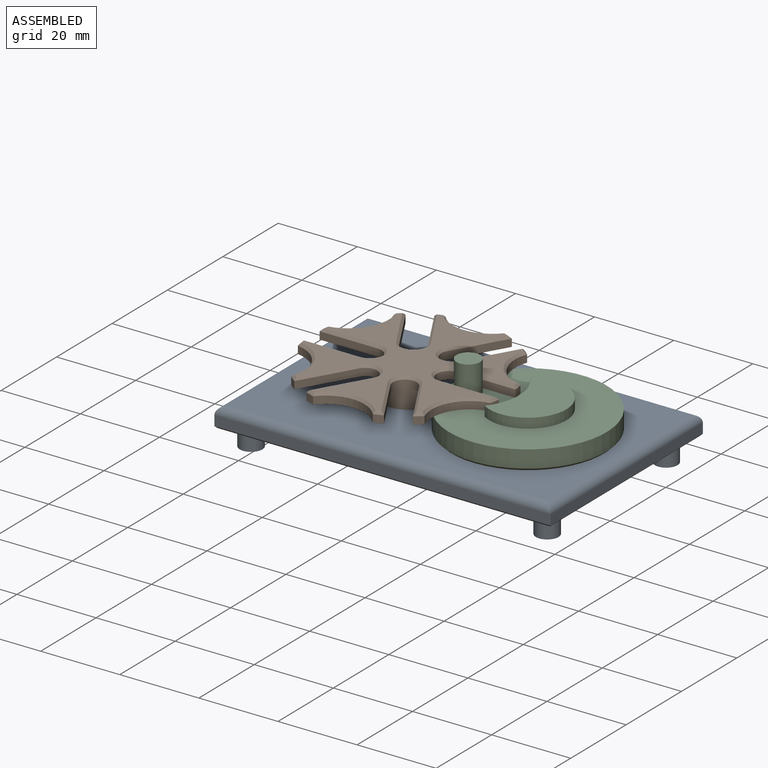
[diagram: assembled view]
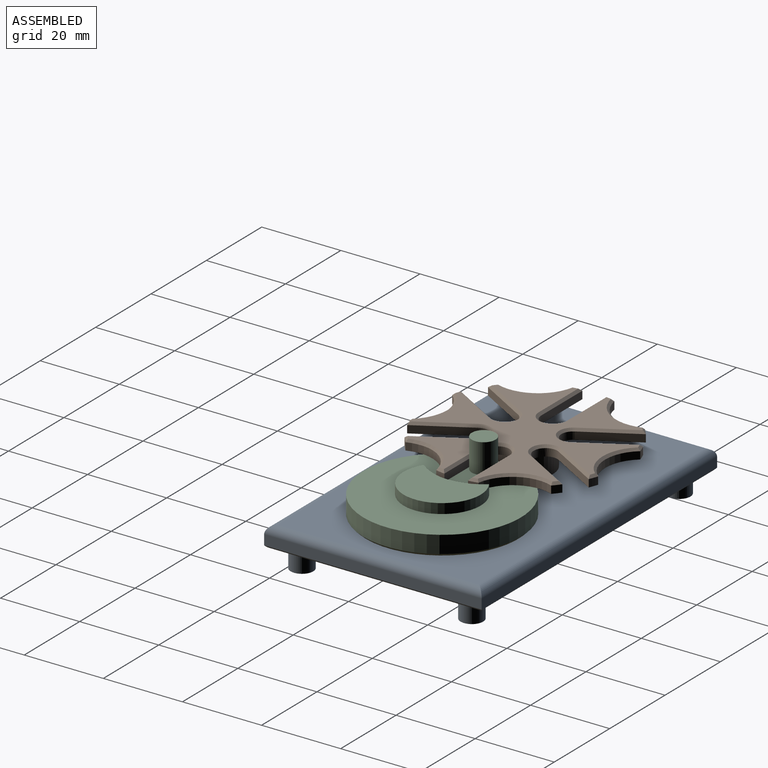
[diagram: assembled view, second angle]
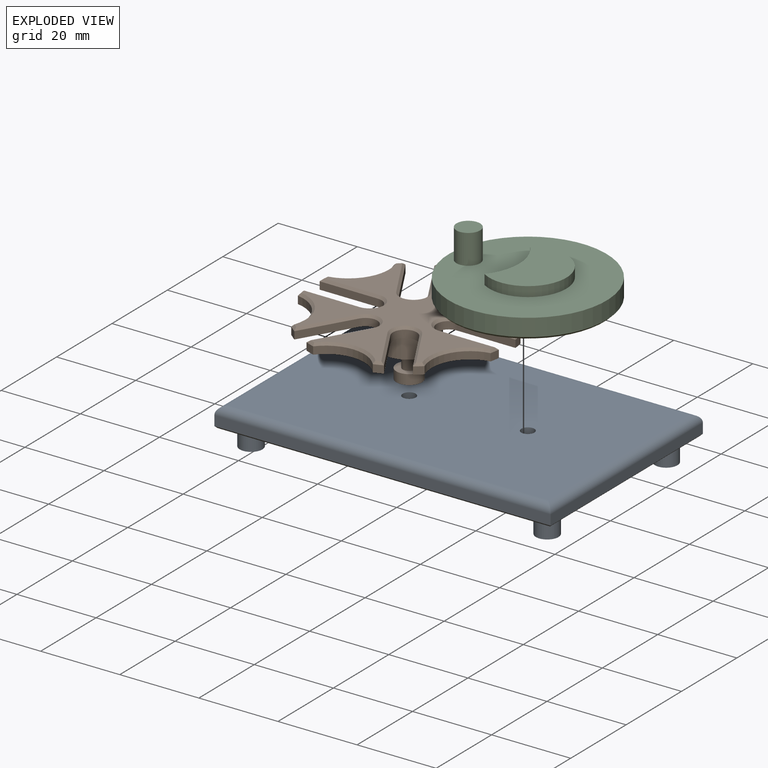
[diagram: exploded view]
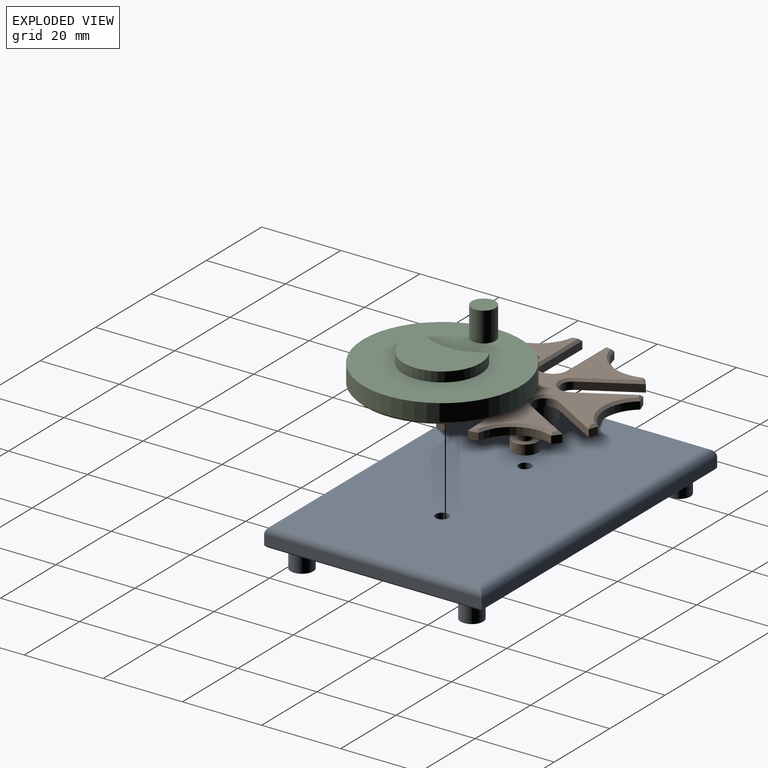
[diagram: exploded view, second angle]
ASSEMBLY  parts=3 mates=3
PART A: 26 faces, bbox 85x55x10 mm
  f0: plane 55x2.5mm, normal (-1,0,0), area 137.5mm2, adj f1,f4,f10,f15
  f1: plane 85x2.5mm, normal (0,-1,0), area 212.5mm2, adj f0,f2,f11,f14
  f2: plane 55x2.5mm, normal (1,0,0), area 137.5mm2, adj f1,f4,f13,f16
  f3: cylinder r=1.65mm len=4.5mm, axis (0,0,-1), area 46.7mm2, adj f6,f9
  f4: plane 85x2.5mm, normal (0,1,0), area 212.5mm2, adj f0,f2,f12,f17
  f5: cylinder r=1.65mm len=4.5mm, axis (0,0,-1), area 46.7mm2, adj f6,f8
  f6: plane 81x51mm, normal (0,0,1), area 4113.9mm2, adj f3,f5,f14,f15,f16,f17
  f7: plane 84x54mm, normal (0,0,-1), area 4404.6mm2, adj f8,f9,f10,f11,f12,f13,f18,f20
  f8: cone r=2.15mm half-angle=45deg, axis (0,0,-1), area 8.4mm2, adj f5,f7
  f9: cone r=2.15mm half-angle=45deg, axis (0,0,-1), area 8.4mm2, adj f3,f7
  f10: plane 55x0.5mm, normal (-0.71,0,-0.71), area 38.5mm2, adj f0,f7,f11,f12
  f11: plane 85x0.5mm, normal (0,-0.71,-0.71), area 59.8mm2, adj f1,f7,f10,f13
  f12: plane 85x0.5mm, normal (0,0.71,-0.71), area 59.8mm2, adj f4,f7,f10,f13
  f13: plane 55x0.5mm, normal (0.71,0,-0.71), area 38.5mm2, adj f2,f7,f11,f12
  f14: cylinder r=2mm len=85mm, axis (-1,0,0), area 262.5mm2, adj f1,f6,f15,f16
  f15: cylinder r=2mm len=55mm, axis (0,1,0), area 168.2mm2, adj f0,f6,f14,f17
  f16: cylinder r=2mm len=55mm, axis (0,-1,0), area 168.2mm2, adj f2,f6,f14,f17
  f17: cylinder r=2mm len=85mm, axis (1,0,0), area 262.5mm2, adj f4,f6,f15,f16
  f18: cylinder r=2.85mm len=5.71mm, axis (0,0,1), area 89.7mm2, adj f7,f19
  f19: plane 5.71x5.71mm, normal (0,0,-1), area 25.6mm2, adj f18
  f20: cylinder r=2.85mm len=5.71mm, axis (0,0,1), area 89.7mm2, adj f7,f21
  f21: plane 5.71x5.71mm, normal (0,0,-1), area 25.6mm2, adj f20
  f22: cylinder r=2.85mm len=5.71mm, axis (0,0,1), area 89.7mm2, adj f7,f23
  f23: plane 5.71x5.71mm, normal (0,0,-1), area 25.6mm2, adj f22
  f24: cylinder r=2.85mm len=5.71mm, axis (0,0,1), area 89.7mm2, adj f7,f25
  f25: plane 5.71x5.71mm, normal (0,0,-1), area 25.6mm2, adj f24
PART B: 85 faces, bbox 49.6x47.7x15 mm
  f0: plane 21.32x19.99mm, normal (0,0,-1), area 148.4mm2, adj f6,f7,f8,f9,f10,f11,f12,f43
  f1: plane 19.62x17.77mm, normal (0,0,-1), area 148.4mm2, adj f5,f6,f36,f37,f38,f39,f40,f43
  f2: plane 21.32x19.99mm, normal (0,0,-1), area 148.4mm2, adj f30,f31,f32,f33,f34,f35,f36,f43
  f3: plane 21.32x19.99mm, normal (0,0,-1), area 148.4mm2, adj f24,f25,f26,f27,f28,f29,f30,f43
  f4: plane 19.62x17.77mm, normal (0,0,-1), area 148.4mm2, adj f18,f19,f20,f21,f22,f23,f24,f43
  f5: plane 12.83x7.41mm, normal (-0.87,-0.5,0), area 28.2mm2, adj f1,f6,f40,f49
  f6: cylinder r=3mm len=5.6mm, axis (0,0,-1), area 17.9mm2, adj f0,f1,f5,f7,f47
  f7: plane 12.83x7.41mm, normal (0.87,0.5,0), area 28.2mm2, adj f0,f6,f8,f45
  f8: cylinder r=25mm len=1.9mm, axis (0,0,-1), area 4.6mm2, adj f0,f7,f9,f46
  f9: cylinder r=9.75mm len=13.08mm, axis (0,0,-1), area 32.8mm2, adj f0,f8,f10,f48
  f10: cylinder r=25mm len=2.38mm, axis (0,0,-1), area 4.6mm2, adj f0,f9,f11,f50
  f11: plane 14.82x1.9mm, normal (0,-1,0), area 28.2mm2, adj f0,f10,f12,f52
  f12: cylinder r=3mm len=6mm, axis (0,0,-1), area 17.9mm2, adj f0,f11,f13,f42,f54
  f13: plane 14.82x1.9mm, normal (0,1,0), area 28.2mm2, adj f12,f14,f42,f56
  f14: cylinder r=25mm len=2.38mm, axis (0,0,-1), area 4.6mm2, adj f13,f15,f42,f58
  f15: cylinder r=9.75mm len=13.08mm, axis (0,0,-1), area 32.8mm2, adj f14,f16,f42,f60
  f16: cylinder r=25mm len=1.9mm, axis (0,0,-1), area 4.6mm2, adj f15,f17,f42,f62
  f17: plane 12.83x7.41mm, normal (0.87,-0.5,0), area 28.2mm2, adj f16,f18,f42,f64
  f18: cylinder r=3mm len=5.6mm, axis (0,0,-1), area 17.9mm2, adj f4,f17,f19,f42,f66
  f19: plane 12.83x7.41mm, normal (-0.87,0.5,0), area 28.2mm2, adj f4,f18,f20,f68
  f20: cylinder r=25mm len=2.26mm, axis (0,0,-1), area 4.6mm2, adj f4,f19,f21,f70
  f21: cylinder r=9.75mm len=15.1mm, axis (0,0,-1), area 32.8mm2, adj f4,f20,f22,f72
  f22: cylinder r=25mm len=2.26mm, axis (0,0,-1), area 4.6mm2, adj f4,f21,f23,f74
  f23: plane 12.83x7.41mm, normal (0.87,0.5,0), area 28.2mm2, adj f4,f22,f24,f76
  f24: cylinder r=3mm len=5.6mm, axis (0,0,-1), area 17.9mm2, adj f3,f4,f23,f25,f78
  f25: plane 12.83x7.41mm, normal (-0.87,-0.5,0), area 28.2mm2, adj f3,f24,f26,f80
  f26: cylinder r=25mm len=1.9mm, axis (0,0,-1), area 4.6mm2, adj f3,f25,f27,f79
  f27: cylinder r=9.75mm len=13.08mm, axis (0,0,-1), area 32.8mm2, adj f3,f26,f28,f77
  f28: cylinder r=25mm len=2.38mm, axis (0,0,-1), area 4.6mm2, adj f3,f27,f29,f75
  f29: plane 14.82x1.9mm, normal (0,1,0), area 28.2mm2, adj f3,f28,f30,f73
  f30: cylinder r=3mm len=6mm, axis (0,0,-1), area 17.9mm2, adj f2,f3,f29,f31,f71
  f31: plane 14.82x1.9mm, normal (0,-1,0), area 28.2mm2, adj f2,f30,f32,f69
  f32: cylinder r=25mm len=2.38mm, axis (0,0,-1), area 4.6mm2, adj f2,f31,f33,f67
  f33: cylinder r=9.75mm len=13.08mm, axis (0,0,-1), area 32.8mm2, adj f2,f32,f34,f65
  f34: cylinder r=25mm len=1.9mm, axis (0,0,-1), area 4.6mm2, adj f2,f33,f35,f63
  f35: plane 12.83x7.41mm, normal (-0.87,0.5,0), area 28.2mm2, adj f2,f34,f36,f61
  f36: cylinder r=3mm len=5.6mm, axis (0,0,-1), area 17.9mm2, adj f1,f2,f35,f37,f59
  f37: plane 12.83x7.41mm, normal (0.87,-0.5,0), area 28.2mm2, adj f1,f36,f38,f57
  f38: cylinder r=25mm len=2.26mm, axis (0,0,-1), area 4.6mm2, adj f1,f37,f39,f55
  f39: cylinder r=9.75mm len=15.1mm, axis (0,0,-1), area 32.8mm2, adj f1,f38,f40,f53
  f40: cylinder r=25mm len=2.26mm, axis (0,0,-1), area 4.6mm2, adj f1,f5,f39,f51
  f41: plane 48.27x46.27mm, normal (0,0,1), area 826.6mm2, adj f45,f46,f47,f48,f49,f50,f51,f52
  f42: plane 21.32x19.99mm, normal (0,0,-1), area 148.4mm2, adj f12,f13,f14,f15,f16,f17,f18,f43
  f43: cylinder r=7mm len=14mm, axis (0,0,1), area 219.9mm2, adj f0,f1,f2,f3,f4,f42,f44
  f44: plane 14x14mm, normal (0,0,-1), area 145.4mm2, adj f43,f81
  f45: plane 13.14x7.59mm, normal (0.61,0.35,0.71), area 12.3mm2, adj f7,f41,f46,f47
  f46: cone r=24.4mm half-angle=45deg, axis (0,0,-1), area 1.6mm2, adj f8,f41,f45,f48
  f47: cone r=3mm half-angle=45deg, axis (0,0,1), area 8.8mm2, adj f6,f41,f45,f49
  f48: cone r=9.75mm half-angle=45deg, axis (0,0,1), area 14.8mm2, adj f9,f41,f46,f50
  f49: plane 12.84x7.94mm, normal (-0.61,-0.35,0.71), area 12.3mm2, adj f5,f41,f47,f51
  f50: cone r=24.4mm half-angle=45deg, axis (0,0,-1), area 1.6mm2, adj f10,f41,f48,f52
  f51: cone r=24.4mm half-angle=45deg, axis (0,0,-1), area 1.6mm2, adj f40,f41,f49,f53
  f52: plane 14.83x0.61mm, normal (0,-0.71,0.71), area 12.3mm2, adj f11,f41,f50,f54
  f53: cone r=9.75mm half-angle=45deg, axis (0,0,1), area 14.8mm2, adj f39,f41,f51,f55
  f54: cone r=3mm half-angle=45deg, axis (0,0,1), area 8.8mm2, adj f12,f41,f52,f56
  f55: cone r=24.4mm half-angle=45deg, axis (0,0,-1), area 1.6mm2, adj f38,f41,f53,f57
  f56: plane 14.83x0.61mm, normal (0,0.71,0.71), area 12.3mm2, adj f13,f41,f54,f58
  f57: plane 12.84x7.94mm, normal (0.61,-0.35,0.71), area 12.3mm2, adj f37,f41,f55,f59
  f58: cone r=24.4mm half-angle=45deg, axis (0,0,-1), area 1.6mm2, adj f14,f41,f56,f60
  f59: cone r=3mm half-angle=45deg, axis (0,0,1), area 8.8mm2, adj f36,f41,f57,f61
  f60: cone r=9.75mm half-angle=45deg, axis (0,0,1), area 14.8mm2, adj f15,f41,f58,f62
  f61: plane 13.14x7.59mm, normal (-0.61,0.35,0.71), area 12.3mm2, adj f35,f41,f59,f63
  f62: cone r=24.4mm half-angle=45deg, axis (0,0,-1), area 1.6mm2, adj f16,f41,f60,f64
  f63: cone r=24.4mm half-angle=45deg, axis (0,0,-1), area 1.6mm2, adj f34,f41,f61,f65
  f64: plane 13.14x7.59mm, normal (0.61,-0.35,0.71), area 12.3mm2, adj f17,f41,f62,f66
  f65: cone r=9.75mm half-angle=45deg, axis (0,0,1), area 14.8mm2, adj f33,f41,f63,f67
  f66: cone r=3mm half-angle=45deg, axis (0,0,1), area 8.8mm2, adj f18,f41,f64,f68
  f67: cone r=24.4mm half-angle=45deg, axis (0,0,-1), area 1.6mm2, adj f32,f41,f65,f69
  f68: plane 12.84x7.94mm, normal (-0.61,0.35,0.71), area 12.3mm2, adj f19,f41,f66,f70
  f69: plane 14.83x0.61mm, normal (0,-0.71,0.71), area 12.3mm2, adj f31,f41,f67,f71
  f70: cone r=24.4mm half-angle=45deg, axis (0,0,-1), area 1.6mm2, adj f20,f41,f68,f72
  f71: cone r=3mm half-angle=45deg, axis (0,0,1), area 8.8mm2, adj f30,f41,f69,f73
  f72: cone r=9.75mm half-angle=45deg, axis (0,0,1), area 14.8mm2, adj f21,f41,f70,f74
  f73: plane 14.83x0.61mm, normal (0,0.71,0.71), area 12.3mm2, adj f29,f41,f71,f75
  f74: cone r=24.4mm half-angle=45deg, axis (0,0,-1), area 1.6mm2, adj f22,f41,f72,f76
  f75: cone r=24.4mm half-angle=45deg, axis (0,0,-1), area 1.6mm2, adj f28,f41,f73,f77
  f76: plane 12.84x7.94mm, normal (0.61,0.35,0.71), area 12.3mm2, adj f23,f41,f74,f78
  f77: cone r=9.75mm half-angle=45deg, axis (0,0,1), area 14.8mm2, adj f27,f41,f75,f79
  f78: cone r=3mm half-angle=45deg, axis (0,0,1), area 8.8mm2, adj f24,f41,f76,f80
  f79: cone r=24.4mm half-angle=45deg, axis (0,0,-1), area 1.6mm2, adj f26,f41,f77,f80
  f80: plane 13.14x7.59mm, normal (-0.61,-0.35,0.71), area 12.3mm2, adj f25,f41,f78,f79
  f81: cylinder r=1.65mm len=5mm, axis (0,0,1), area 51.8mm2, adj f44,f84
  f82: cylinder r=3.25mm len=6.5mm, axis (0,0,1), area 51.1mm2, adj f83,f84
  f83: plane 6.5x6.5mm, normal (0,0,-1), area 33.2mm2, adj f82
  f84: plane 6.5x6.5mm, normal (0,0,1), area 24.6mm2, adj f81,f82
PART C: 147 faces, bbox 39.8x39.8x20 mm
  f0: cylinder r=3.25mm len=2.5mm, axis (0,0,1), area 0.6mm2, adj f44,f45,f144,f145
  f1: cylinder r=3.25mm len=2.5mm, axis (0,0,1), area 0.6mm2, adj f44,f45,f142,f143
  f2: cylinder r=3.25mm len=2.5mm, axis (0,0,1), area 0.6mm2, adj f44,f45,f140,f141
  f3: cylinder r=3.25mm len=2.5mm, axis (0,0,1), area 0.6mm2, adj f44,f45,f134,f139
  f4: cylinder r=3.25mm len=2.5mm, axis (0,0,1), area 0.6mm2, adj f44,f45,f136,f137
  f5: cylinder r=3.25mm len=2.5mm, axis (0,0,1), area 0.6mm2, adj f44,f45,f88,f135
  f6: cylinder r=3.25mm len=2.5mm, axis (0,0,1), area 0.6mm2, adj f44,f45,f132,f133
  f7: cylinder r=3.25mm len=2.5mm, axis (0,0,1), area 0.6mm2, adj f44,f45,f131,f138
  f8: cylinder r=3.25mm len=2.5mm, axis (0,0,1), area 0.6mm2, adj f44,f45,f128,f129
  f9: cylinder r=3.25mm len=2.5mm, axis (0,0,1), area 0.6mm2, adj f44,f45,f118,f127
  f10: cylinder r=3.25mm len=2.5mm, axis (0,0,1), area 0.6mm2, adj f44,f45,f124,f125
  f11: cylinder r=3.25mm len=2.5mm, axis (0,0,1), area 0.6mm2, adj f44,f45,f123,f130
  f12: cylinder r=3.25mm len=2.5mm, axis (0,0,1), area 0.6mm2, adj f44,f45,f120,f121
  f13: cylinder r=3.25mm len=2.5mm, axis (0,0,1), area 0.6mm2, adj f44,f45,f119,f146
  f14: cylinder r=3.25mm len=2.5mm, axis (0,0,1), area 0.6mm2, adj f44,f45,f116,f117
  f15: cylinder r=3.25mm len=2.5mm, axis (0,0,1), area 0.6mm2, adj f44,f45,f115,f122
  f16: cylinder r=3.25mm len=2.5mm, axis (0,0,1), area 0.6mm2, adj f44,f45,f112,f113
  f17: cylinder r=3.25mm len=2.5mm, axis (0,0,1), area 0.6mm2, adj f44,f45,f102,f111
  f18: cylinder r=3.25mm len=2.5mm, axis (0,0,1), area 0.6mm2, adj f44,f45,f108,f109
  f19: cylinder r=3.25mm len=2.5mm, axis (0,0,1), area 0.6mm2, adj f44,f45,f107,f114
  f20: cylinder r=3.25mm len=2.5mm, axis (0,0,1), area 0.6mm2, adj f44,f45,f104,f105
  f21: cylinder r=3.25mm len=2.5mm, axis (0,0,1), area 0.6mm2, adj f44,f45,f57,f103
  f22: cylinder r=3.25mm len=2.5mm, axis (0,0,1), area 0.6mm2, adj f44,f45,f100,f101
  f23: cylinder r=3.25mm len=2.5mm, axis (0,0,1), area 0.6mm2, adj f44,f45,f99,f106
  f24: cylinder r=3.25mm len=2.5mm, axis (0,0,1), area 0.6mm2, adj f44,f45,f96,f97
  f25: cylinder r=3.25mm len=2.5mm, axis (0,0,1), area 0.6mm2, adj f44,f45,f95,f110
  f26: cylinder r=3.25mm len=2.5mm, axis (0,0,1), area 0.6mm2, adj f44,f45,f93,f98
  f27: cylinder r=3.25mm len=2.5mm, axis (0,0,1), area 0.6mm2, adj f44,f45,f91,f94
  f28: cylinder r=3.25mm len=2.5mm, axis (0,0,1), area 0.6mm2, adj f44,f45,f84,f89
  f29: cylinder r=3.25mm len=2.5mm, axis (0,0,1), area 0.6mm2, adj f44,f45,f87,f90
  f30: cylinder r=3.25mm len=2.5mm, axis (0,0,1), area 0.6mm2, adj f44,f45,f85,f92
  f31: cylinder r=3.25mm len=2.5mm, axis (0,0,1), area 0.6mm2, adj f44,f45,f83,f86
  f32: cylinder r=3.25mm len=2.5mm, axis (0,0,1), area 0.6mm2, adj f44,f45,f80,f81
  f33: cylinder r=3.25mm len=2.5mm, axis (0,0,1), area 0.6mm2, adj f44,f45,f64,f79
  f34: cylinder r=3.25mm len=2.5mm, axis (0,0,1), area 0.6mm2, adj f44,f45,f76,f77
  f35: cylinder r=3.25mm len=2.5mm, axis (0,0,1), area 0.6mm2, adj f44,f45,f75,f82
  f36: cylinder r=3.25mm len=2.5mm, axis (0,0,1), area 0.6mm2, adj f44,f45,f73,f126
  f37: cylinder r=3.25mm len=2.5mm, axis (0,0,1), area 0.6mm2, adj f44,f45,f71,f74
  f38: cylinder r=3.25mm len=2.5mm, axis (0,0,1), area 0.6mm2, adj f44,f45,f68,f69
  f39: cylinder r=3.25mm len=2.5mm, axis (0,0,1), area 0.6mm2, adj f44,f45,f67,f72
  f40: cylinder r=3.25mm len=2.5mm, axis (0,0,1), area 0.6mm2, adj f44,f45,f60,f65
  f41: cylinder r=3.25mm len=2.5mm, axis (0,0,1), area 0.6mm2, adj f44,f45,f63,f66
  f42: cylinder r=3.25mm len=2.5mm, axis (0,0,1), area 0.6mm2, adj f44,f45,f61,f70
  f43: cylinder r=3.25mm len=2.5mm, axis (0,0,1), area 0.6mm2, adj f44,f45,f59,f62
  f44: plane 6.5x6.5mm, normal (0,0,-1), area 31.2mm2, adj f0,f1,f2,f3,f4,f5,f6,f7
  f45: plane 6.5x6.5mm, normal (0,0,1), area 22.6mm2, adj f0,f1,f2,f3,f4,f5,f6,f7
  f46: plane 39.84x39.84mm, normal (0,0,1), area 1007mm2, adj f47,f49,f50,f52
  f47: cylinder r=19.92mm len=39.84mm, axis (0,0,-1), area 550.7mm2, adj f46,f54
  f48: plane 38.64x38.64mm, normal (0,0,-1), area 1164.1mm2, adj f54,f55
  f49: cylinder r=12.86mm len=13.74mm, axis (0,0,-1), area 44.9mm2, adj f46,f50,f51
  f50: cylinder r=9.75mm len=19.5mm, axis (0,0,-1), area 103.9mm2, adj f46,f49,f51
  f51: plane 19.5x18.64mm, normal (0,0,1), area 211.4mm2, adj f49,f50
  f52: cylinder r=3mm len=7.5mm, axis (0,0,-1), area 141.4mm2, adj f46,f53
  f53: plane 6x6mm, normal (0,0,1), area 28.3mm2, adj f52
  f54: cone r=19.92mm half-angle=45deg, axis (0,0,1), area 104.6mm2, adj f47,f48
  f55: cylinder r=1.65mm len=5mm, axis (0,0,1), area 51.8mm2, adj f45,f48
  f56: cylinder r=3.25mm len=2.5mm, axis (0,0,1), area 0.6mm2, adj f44,f45,f58,f78
  f57: plane 2.5x0.45mm, normal (0.98,-0.22,0), area 1.2mm2, adj f21,f44,f45,f58
  f58: plane 2.5x0.45mm, normal (-0.98,-0.22,0), area 1.2mm2, adj f44,f45,f56,f57
  f59: plane 2.5x0.43mm, normal (-0.37,-0.93,0), area 1.2mm2, adj f43,f44,f45,f60
  f60: plane 2.5x0.33mm, normal (0.73,0.69,0), area 1.2mm2, adj f40,f44,f45,f59
  f61: plane 2.5x0.45mm, normal (-0.23,-0.97,0), area 1.2mm2, adj f42,f44,f45,f62
  f62: plane 2.5x0.36mm, normal (0.62,0.78,0), area 1.2mm2, adj f43,f44,f45,f61
  f63: plane 2.5x0.37mm, normal (-0.61,-0.79,0), area 1.2mm2, adj f41,f44,f45,f64
  f64: plane 2.5x0.41mm, normal (0.89,0.46,0), area 1.2mm2, adj f33,f44,f45,f63
  f65: plane 2.5x0.4mm, normal (-0.49,-0.87,0), area 1.2mm2, adj f40,f44,f45,f66
  f66: plane 2.5x0.38mm, normal (0.81,0.58,0), area 1.2mm2, adj f41,f44,f45,f65
  f67: plane 2.5x0.46mm, normal (0.04,-1,0), area 1.2mm2, adj f39,f44,f45,f68
  f68: plane 2.5x0.43mm, normal (0.38,0.92,0), area 1.2mm2, adj f38,f44,f45,f67
  f69: plane 2.5x0.46mm, normal (-0.1,-1,0), area 1.2mm2, adj f38,f44,f45,f70
  f70: plane 2.5x0.4mm, normal (0.51,0.86,0), area 1.2mm2, adj f42,f44,f45,f69
  f71: plane 2.5x0.45mm, normal (0.18,-0.98,0), area 1.2mm2, adj f37,f44,f45,f72
  f72: plane 2.5x0.45mm, normal (0.25,0.97,0), area 1.2mm2, adj f39,f44,f45,f71
  f73: plane 2.5x0.44mm, normal (0.32,-0.95,0), area 1.2mm2, adj f36,f44,f45,f74
  f74: plane 2.5x0.46mm, normal (0.11,0.99,0), area 1.2mm2, adj f37,f44,f45,f73
  f75: plane 2.5x0.41mm, normal (-0.88,-0.48,0), area 1.2mm2, adj f35,f44,f45,f76
  f76: plane 2.5x0.46mm, normal (1,0.06,0), area 1.2mm2, adj f34,f44,f45,f75
  f77: plane 2.5x0.43mm, normal (-0.94,-0.35,0), area 1.2mm2, adj f34,f44,f45,f78
  f78: plane 2.5x0.46mm, normal (1,-0.08,0), area 1.2mm2, adj f44,f45,f56,f77
  f79: plane 2.5x0.33mm, normal (-0.71,-0.7,0), area 1.2mm2, adj f33,f44,f45,f80
  f80: plane 2.5x0.43mm, normal (0.94,0.33,0), area 1.2mm2, adj f32,f44,f45,f79
  f81: plane 2.5x0.37mm, normal (-0.8,-0.59,0), area 1.2mm2, adj f32,f44,f45,f82
  f82: plane 2.5x0.45mm, normal (0.98,0.2,0), area 1.2mm2, adj f35,f44,f45,f81
  f83: plane 2.5x0.45mm, normal (0.17,0.99,0), area 1.2mm2, adj f31,f44,f45,f84
  f84: plane 2.5x0.38mm, normal (-0.57,-0.82,0), area 1.2mm2, adj f28,f44,f45,f83
  f85: plane 2.5x0.46mm, normal (0.03,1,0), area 1.2mm2, adj f30,f44,f45,f86
  f86: plane 2.5x0.41mm, normal (-0.45,-0.89,0), area 1.2mm2, adj f31,f44,f45,f85
  f87: plane 2.5x0.42mm, normal (0.43,0.9,0), area 1.2mm2, adj f29,f44,f45,f88
  f88: plane 2.5x0.36mm, normal (-0.77,-0.64,0), area 1.2mm2, adj f5,f44,f45,f87
  f89: plane 2.5x0.44mm, normal (0.3,0.95,0), area 1.2mm2, adj f28,f44,f45,f90
  f90: plane 2.5x0.34mm, normal (-0.68,-0.74,0), area 1.2mm2, adj f29,f44,f45,f89
  f91: plane 2.5x0.46mm, normal (-0.11,0.99,0), area 1.2mm2, adj f27,f44,f45,f92
  f92: plane 2.5x0.44mm, normal (-0.32,-0.95,0), area 1.2mm2, adj f30,f44,f45,f91
  f93: plane 2.5x0.45mm, normal (-0.25,0.97,0), area 1.2mm2, adj f26,f44,f45,f94
  f94: plane 2.5x0.45mm, normal (-0.18,-0.98,0), area 1.2mm2, adj f27,f44,f45,f93
  f95: plane 2.5x0.4mm, normal (-0.51,0.86,0), area 1.2mm2, adj f25,f44,f45,f96
  f96: plane 2.5x0.46mm, normal (0.1,-1,0), area 1.2mm2, adj f24,f44,f45,f95
  f97: plane 2.5x0.43mm, normal (-0.38,0.92,0), area 1.2mm2, adj f24,f44,f45,f98
  f98: plane 2.5x0.46mm, normal (-0.04,-1,0), area 1.2mm2, adj f26,f44,f45,f97
  f99: plane 2.5x0.45mm, normal (-0.98,0.2,0), area 1.2mm2, adj f23,f44,f45,f100
  f100: plane 2.5x0.37mm, normal (0.8,-0.59,0), area 1.2mm2, adj f22,f44,f45,f99
  f101: plane 2.5x0.43mm, normal (-0.94,0.33,0), area 1.2mm2, adj f22,f44,f45,f102
  f102: plane 2.5x0.33mm, normal (0.71,-0.7,0), area 1.2mm2, adj f17,f44,f45,f101
  f103: plane 2.5x0.46mm, normal (-1,-0.08,0), area 1.2mm2, adj f21,f44,f45,f104
  f104: plane 2.5x0.43mm, normal (0.94,-0.35,0), area 1.2mm2, adj f20,f44,f45,f103
  f105: plane 2.5x0.46mm, normal (-1,0.06,0), area 1.2mm2, adj f20,f44,f45,f106
  f106: plane 2.5x0.41mm, normal (0.88,-0.48,0), area 1.2mm2, adj f23,f44,f45,f105
  f107: plane 2.5x0.33mm, normal (-0.73,0.69,0), area 1.2mm2, adj f19,f44,f45,f108
  f108: plane 2.5x0.43mm, normal (0.37,-0.93,0), area 1.2mm2, adj f18,f44,f45,f107
  f109: plane 2.5x0.36mm, normal (-0.62,0.78,0), area 1.2mm2, adj f18,f44,f45,f110
  f110: plane 2.5x0.45mm, normal (0.23,-0.97,0), area 1.2mm2, adj f25,f44,f45,f109
  f111: plane 2.5x0.41mm, normal (-0.89,0.46,0), area 1.2mm2, adj f17,f44,f45,f112
  f112: plane 2.5x0.37mm, normal (0.61,-0.79,0), area 1.2mm2, adj f16,f44,f45,f111
  f113: plane 2.5x0.38mm, normal (-0.81,0.58,0), area 1.2mm2, adj f16,f44,f45,f114
  f114: plane 2.5x0.4mm, normal (0.49,-0.87,0), area 1.2mm2, adj f19,f44,f45,f113
  f115: plane 2.5x0.42mm, normal (0.92,-0.4,0), area 1.2mm2, adj f15,f44,f45,f116
  f116: plane 2.5x0.35mm, normal (-0.66,0.75,0), area 1.2mm2, adj f14,f44,f45,f115
  f117: plane 2.5x0.39mm, normal (0.85,-0.52,0), area 1.2mm2, adj f14,f44,f45,f118
  f118: plane 2.5x0.38mm, normal (-0.55,0.83,0), area 1.2mm2, adj f9,f44,f45,f117
  f119: plane 2.5x0.46mm, normal (0.99,-0.13,0), area 1.2mm2, adj f13,f44,f45,f120
  f120: plane 2.5x0.39mm, normal (-0.84,0.54,0), area 1.2mm2, adj f12,f44,f45,f119
  f121: plane 2.5x0.44mm, normal (0.96,-0.27,0), area 1.2mm2, adj f12,f44,f45,f122
  f122: plane 2.5x0.35mm, normal (-0.76,0.65,0), area 1.2mm2, adj f15,f44,f45,f121
  f123: plane 2.5x0.38mm, normal (0.57,-0.82,0), area 1.2mm2, adj f11,f44,f45,f124
  f124: plane 2.5x0.45mm, normal (-0.17,0.99,0), area 1.2mm2, adj f10,f44,f45,f123
  f125: plane 2.5x0.41mm, normal (0.45,-0.89,0), area 1.2mm2, adj f10,f44,f45,f126
  f126: plane 2.5x0.46mm, normal (-0.03,1,0), area 1.2mm2, adj f36,f44,f45,f125
  f127: plane 2.5x0.36mm, normal (0.77,-0.64,0), area 1.2mm2, adj f9,f44,f45,f128
  f128: plane 2.5x0.42mm, normal (-0.43,0.9,0), area 1.2mm2, adj f8,f44,f45,f127
  f129: plane 2.5x0.34mm, normal (0.68,-0.74,0), area 1.2mm2, adj f8,f44,f45,f130
  f130: plane 2.5x0.44mm, normal (-0.3,0.95,0), area 1.2mm2, adj f11,f44,f45,f129
  f131: plane 2.5x0.35mm, normal (0.76,0.65,0), area 1.2mm2, adj f7,f44,f45,f132
  f132: plane 2.5x0.44mm, normal (-0.96,-0.27,0), area 1.2mm2, adj f6,f44,f45,f131
  f133: plane 2.5x0.39mm, normal (0.84,0.54,0), area 1.2mm2, adj f6,f44,f45,f134
  f134: plane 2.5x0.46mm, normal (-0.99,-0.13,0), area 1.2mm2, adj f3,f44,f45,f133
  f135: plane 2.5x0.38mm, normal (0.55,0.83,0), area 1.2mm2, adj f5,f44,f45,f136
  f136: plane 2.5x0.39mm, normal (-0.85,-0.52,0), area 1.2mm2, adj f4,f44,f45,f135
  f137: plane 2.5x0.35mm, normal (0.66,0.75,0), area 1.2mm2, adj f4,f44,f45,f138
  f138: plane 2.5x0.42mm, normal (-0.92,-0.4,0), area 1.2mm2, adj f7,f44,f45,f137
  f139: plane 2.5x0.42mm, normal (0.91,0.41,0), area 1.2mm2, adj f3,f44,f45,f140
  f140: plane 2.5x0.46mm, normal (-1,0.01,0), area 1.2mm2, adj f2,f44,f45,f139
  f141: plane 2.5x0.44mm, normal (0.96,0.28,0), area 1.2mm2, adj f2,f44,f45,f142
  f142: plane 2.5x0.46mm, normal (-0.99,0.15,0), area 1.2mm2, adj f1,f44,f45,f141
  f143: plane 2.5x0.46mm, normal (0.99,0.15,0), area 1.2mm2, adj f1,f44,f45,f144
  f144: plane 2.5x0.44mm, normal (-0.96,0.28,0), area 1.2mm2, adj f0,f44,f45,f143
  f145: plane 2.5x0.46mm, normal (1,0.01,0), area 1.2mm2, adj f0,f44,f45,f146
  f146: plane 2.5x0.42mm, normal (-0.91,0.41,0), area 1.2mm2, adj f13,f44,f45,f145
PLACE A t=(-5.1,-1.42,0.41)mm fixed
PLACE B rot(axis=(0,0,-1),0.2deg) t=(24.9,26.08,10.41)mm
PLACE C rot(axis=(0,0,1),56.4deg) t=(54.9,26.08,5.41)mm
MATE cylindrical C.f55 <-> A.f5  axis (0,0,-1) through (54.9,26.08,5.41)mm
MATE planar B.f43 <-> A.f6  axis (0,0,-1) through (24.9,26.08,5.41)mm
MATE planar C.f50 <-> A.f6  axis (0,0,-1) through (54.9,26.08,5.41)mm
